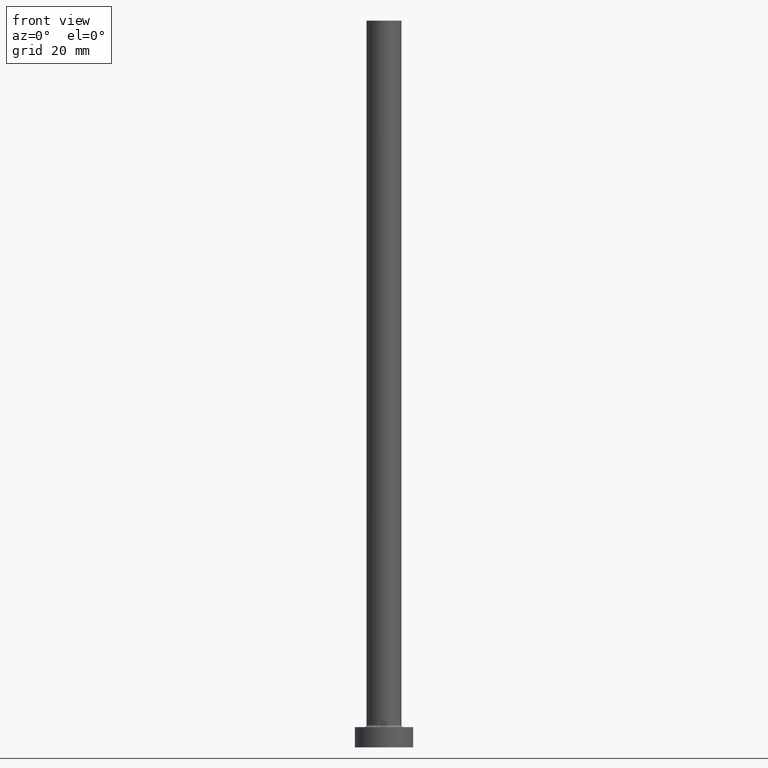
[diagram: clean part render]
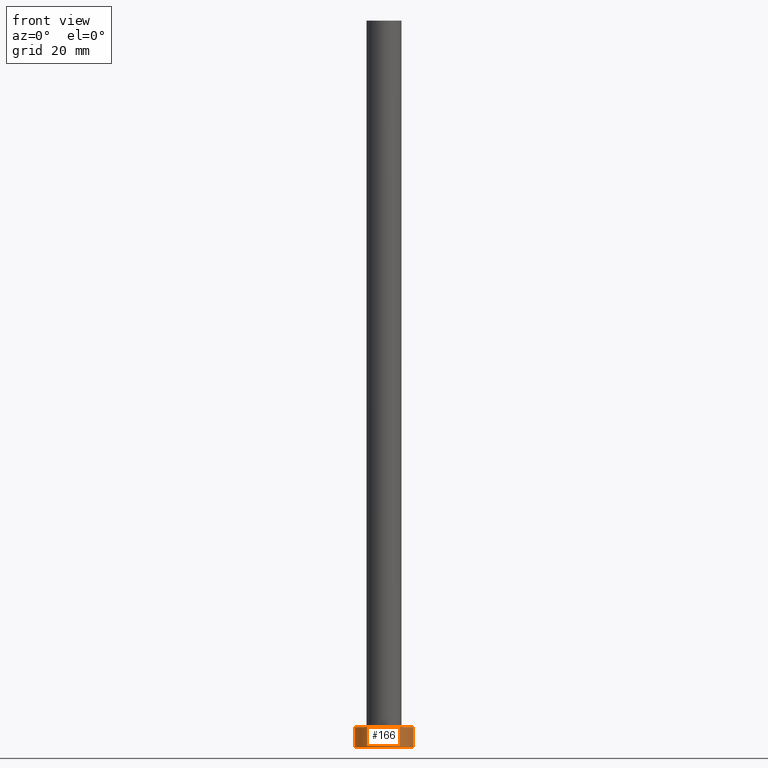
[diagram: same view with one face highlighted and labeled with its STEP entity id]
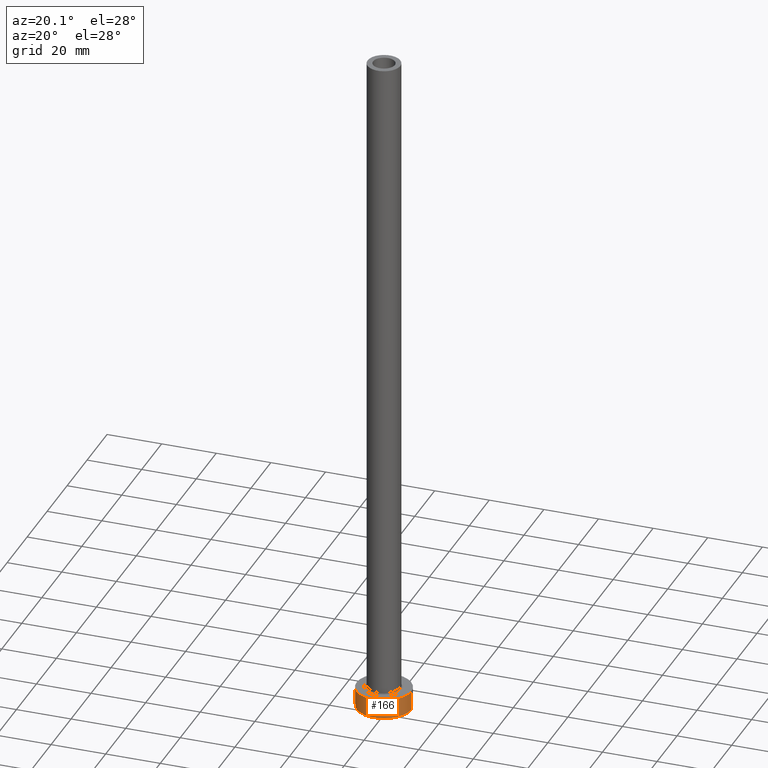
[diagram: same view with one face highlighted and labeled with its STEP entity id]
A machine part, front view. The second image highlights one B-rep face of the part: STEP entity #166.
A second angle (auxiliary view) of the same face is appended — the face is thin or edge-on in the first view.
In plain terms, the highlighted cylindrical surface (edge-blend (fillet) strip) has radius 10 mm, axis along (-0, -0, -1).
Its self-contained STEP definition (entity closure, byte-faithful):
#26 = CIRCLE ( 'NONE', #292, 10.00000000000000000 ) ;
#29 = CARTESIAN_POINT ( 'NONE',  ( 10.00000000000000000, 1.224646799147353256E-15, 7.000000000000000000 ) ) ;
#40 = VECTOR ( 'NONE', #68, 1000.000000000000000 ) ;
#47 = CARTESIAN_POINT ( 'NONE',  ( 10.00000000000000000, 1.224646799147353256E-15, 0.000000000000000000 ) ) ;
#62 = DIRECTION ( 'NONE',  ( 1.000000000000000000, 0.000000000000000000, 0.000000000000000000 ) ) ;
#68 = DIRECTION ( 'NONE',  ( -0.000000000000000000, -0.000000000000000000, -1.000000000000000000 ) ) ;
#72 = ORIENTED_EDGE ( 'NONE', *, *, #442, .F. ) ;
#88 = CYLINDRICAL_SURFACE ( 'NONE', #445, 10.00000000000000000 ) ;
#123 = EDGE_CURVE ( 'NONE', #428, #176, #443, .T. ) ;
#124 = ORIENTED_EDGE ( 'NONE', *, *, #158, .F. ) ;
#131 = CARTESIAN_POINT ( 'NONE',  ( -10.00000000000000000, 0.000000000000000000, 7.000000000000000000 ) ) ;
#149 = EDGE_LOOP ( 'NONE', ( #72, #124, #347, #441 ) ) ;
#158 = EDGE_CURVE ( 'NONE', #428, #254, #234, .T. ) ;
#166 = ADVANCED_FACE ( 'NONE', ( #368 ), #88, .T. ) ;
#176 = VERTEX_POINT ( 'NONE', #247 ) ;
#182 = CARTESIAN_POINT ( 'NONE',  ( 10.00000000000000000, 1.224646799147353256E-15, 7.000000000000000000 ) ) ;
#194 = DIRECTION ( 'NONE',  ( -1.000000000000000000, 0.000000000000000000, 0.000000000000000000 ) ) ;
#228 = DIRECTION ( 'NONE',  ( 1.000000000000000000, 0.000000000000000000, 0.000000000000000000 ) ) ;
#234 = CIRCLE ( 'NONE', #346, 10.00000000000000000 ) ;
#247 = CARTESIAN_POINT ( 'NONE',  ( -10.00000000000000000, 0.000000000000000000, 0.000000000000000000 ) ) ;
#253 = CARTESIAN_POINT ( 'NONE',  ( -10.00000000000000000, 0.000000000000000000, 7.000000000000000000 ) ) ;
#254 = VERTEX_POINT ( 'NONE', #29 ) ;
#264 = DIRECTION ( 'NONE',  ( 0.000000000000000000, 0.000000000000000000, 1.000000000000000000 ) ) ;
#278 = CARTESIAN_POINT ( 'NONE',  ( 0.000000000000000000, 0.000000000000000000, 7.000000000000000000 ) ) ;
#292 = AXIS2_PLACEMENT_3D ( 'NONE', #322, #383, #62 ) ;
#306 = DIRECTION ( 'NONE',  ( -0.000000000000000000, -0.000000000000000000, -1.000000000000000000 ) ) ;
#309 = VECTOR ( 'NONE', #407, 1000.000000000000000 ) ;
#322 = CARTESIAN_POINT ( 'NONE',  ( 0.000000000000000000, 0.000000000000000000, 0.000000000000000000 ) ) ;
#346 = AXIS2_PLACEMENT_3D ( 'NONE', #434, #264, #228 ) ;
#347 = ORIENTED_EDGE ( 'NONE', *, *, #123, .T. ) ;
#361 = VERTEX_POINT ( 'NONE', #47 ) ;
#368 = FACE_OUTER_BOUND ( 'NONE', #149, .T. ) ;
#383 = DIRECTION ( 'NONE',  ( 0.000000000000000000, 0.000000000000000000, 1.000000000000000000 ) ) ;
#407 = DIRECTION ( 'NONE',  ( -0.000000000000000000, -0.000000000000000000, -1.000000000000000000 ) ) ;
#408 = EDGE_CURVE ( 'NONE', #176, #361, #26, .T. ) ;
#426 = LINE ( 'NONE', #182, #40 ) ;
#428 = VERTEX_POINT ( 'NONE', #253 ) ;
#434 = CARTESIAN_POINT ( 'NONE',  ( 0.000000000000000000, 0.000000000000000000, 7.000000000000000000 ) ) ;
#441 = ORIENTED_EDGE ( 'NONE', *, *, #408, .T. ) ;
#442 = EDGE_CURVE ( 'NONE', #254, #361, #426, .T. ) ;
#443 = LINE ( 'NONE', #131, #309 ) ;
#445 = AXIS2_PLACEMENT_3D ( 'NONE', #278, #306, #194 ) ;